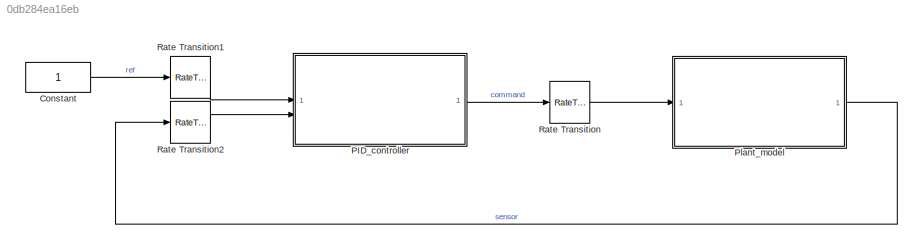
MODEL slx_0db284ea16eb
KIND model
CONFIG AbsTol = auto
CONFIG EnableMultiTasking = off
CONFIG FixedStep = auto
CONFIG MaxStep = auto
CONFIG MinStep = auto
CONFIG RelTol = 1e-3
CONFIG SampleTimeConstraint = Unconstrained
CONFIG SolverName = VariableStepAuto
CONFIG StartTime = 0.0
CONFIG StopTime = 30
BLOCK [Constant] Constant
BLOCK [ModelReference] PID_controller
  ModelNameDialog = DSD_PID_controller
  ModelReferenceVersion = 6.0
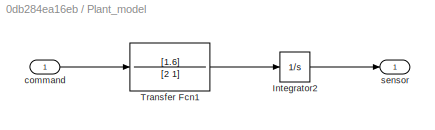
BLOCK [SubSystem] Plant_model
BLOCK [Integrator] Plant_model/Integrator2
BLOCK [TransferFcn] Plant_model/Transfer Fcn1
  Denominator = [2 1]
  Numerator = [1.6]
BLOCK [Inport] Plant_model/command
BLOCK [Outport] Plant_model/sensor
BLOCK [RateTransition] Rate Transition
BLOCK [RateTransition] Rate Transition1
  OutPortSampleTime = ts
BLOCK [RateTransition] Rate Transition2
  OutPortSampleTime = ts
LINE Constant:1 -> Rate Transition1:1
LINE PID_controller:1 -> Rate Transition:1
LINE Plant_model/Integrator2:1 -> Plant_model/sensor:1
LINE Plant_model/Transfer Fcn1:1 -> Plant_model/Integrator2:1
LINE Plant_model/command:1 -> Plant_model/Transfer Fcn1:1
LINE Plant_model:1 -> Rate Transition2:1
LINE Rate Transition1:1 -> PID_controller:1
LINE Rate Transition2:1 -> PID_controller:2
LINE Rate Transition:1 -> Plant_model:1
